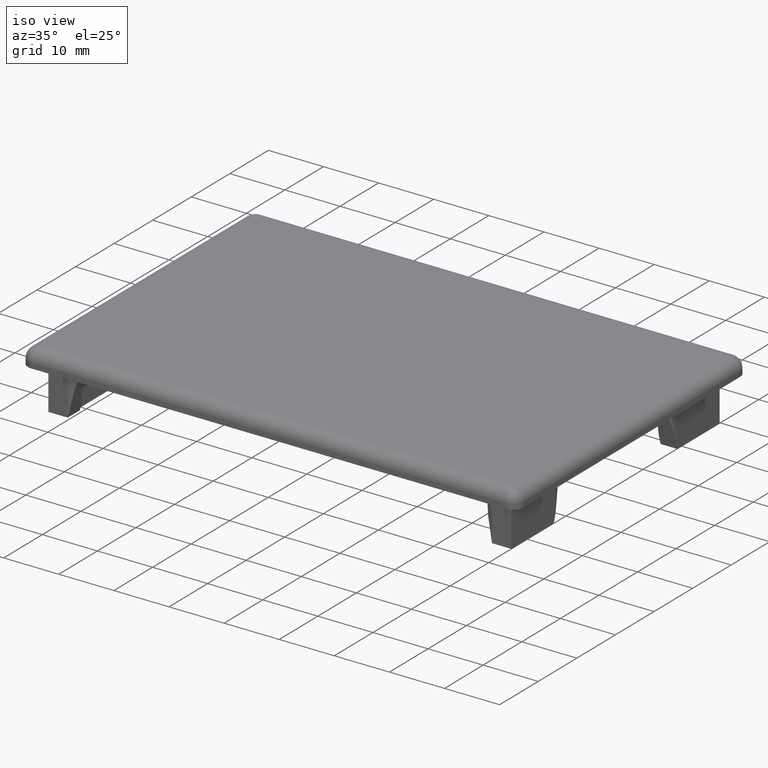
[diagram: clean part render]
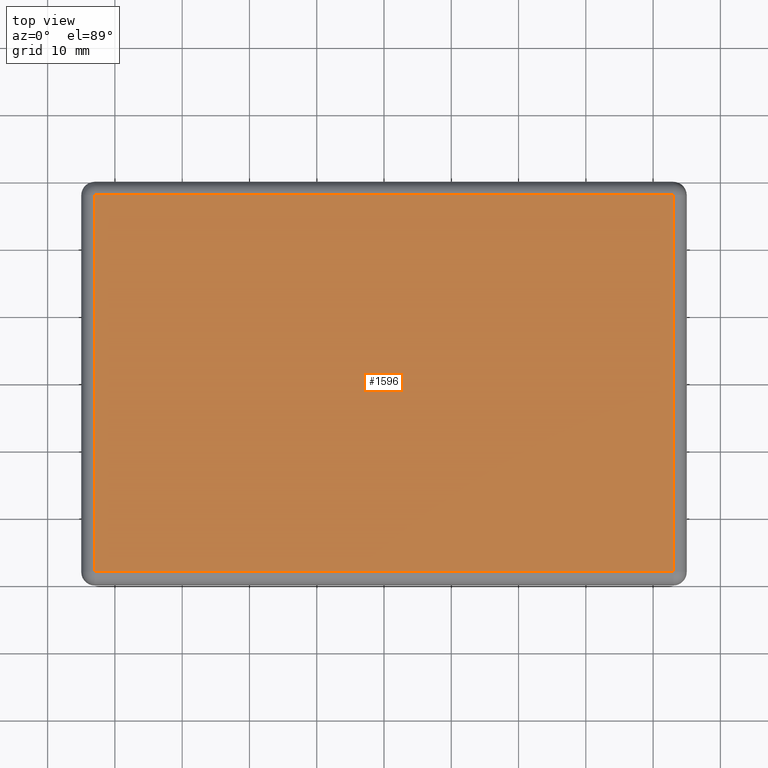
[diagram: tour spotlight — one face highlighted and labeled with its STEP entity id]
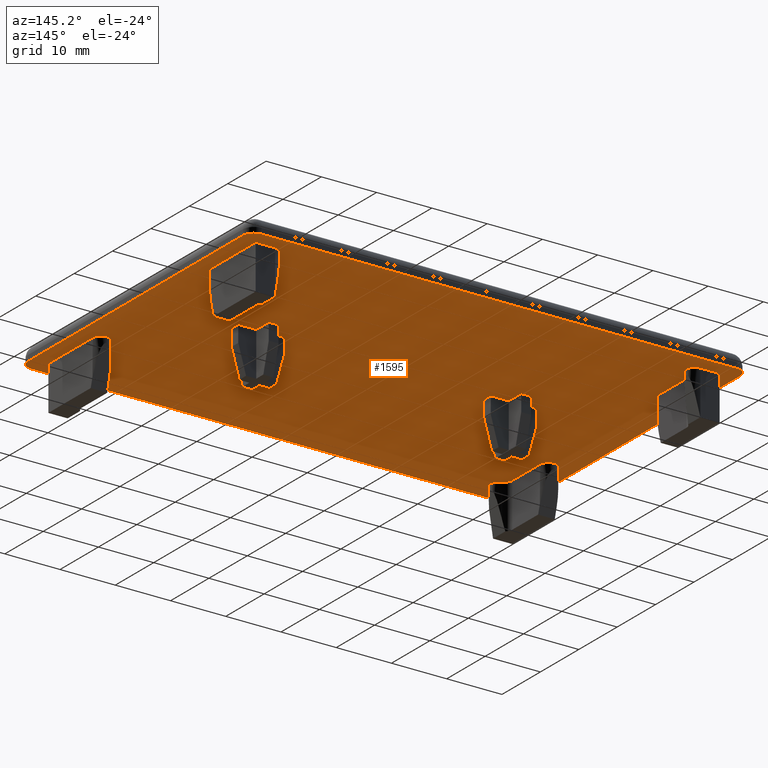
[diagram: tour spotlight — one face highlighted and labeled with its STEP entity id]
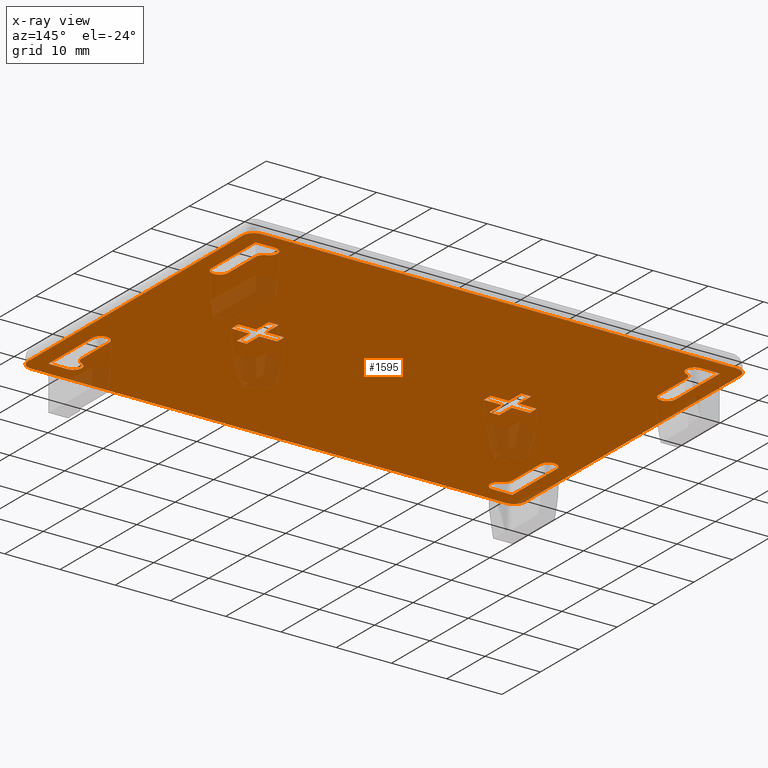
[diagram: x-ray of the same camera — body ghosted, this tour face saturated]
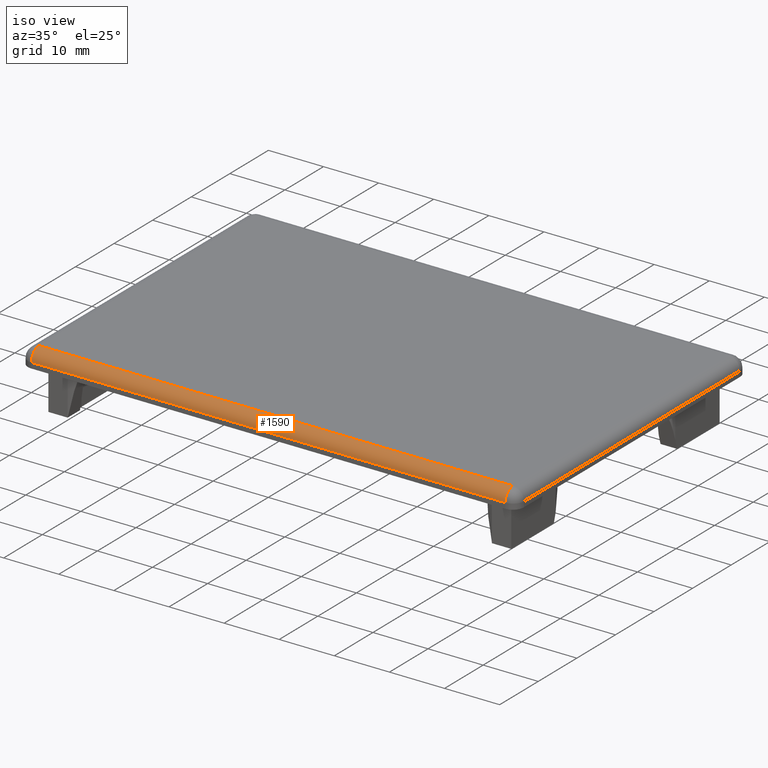
[diagram: tour spotlight — one face highlighted and labeled with its STEP entity id]
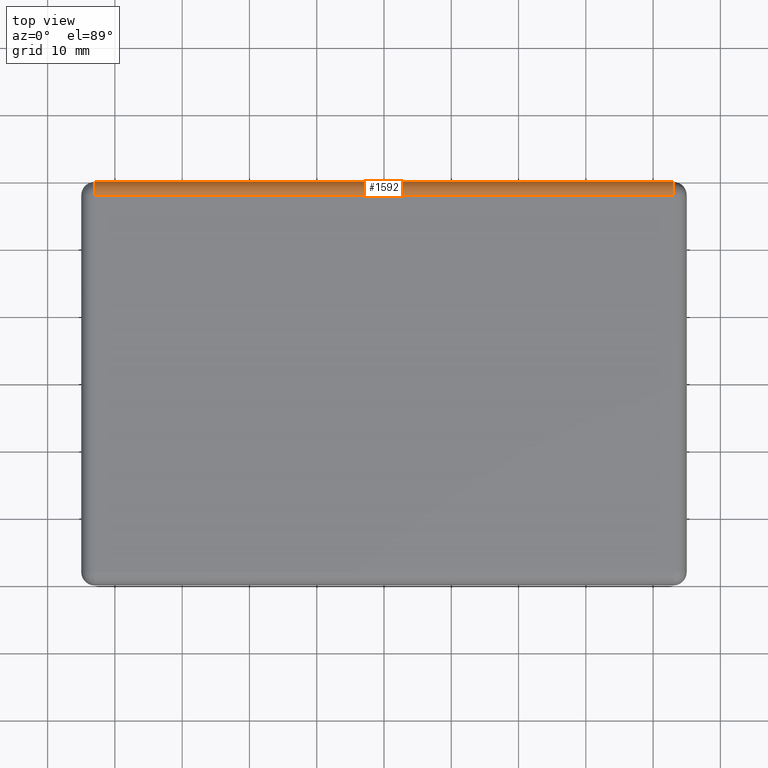
[diagram: tour spotlight — one face highlighted and labeled with its STEP entity id]
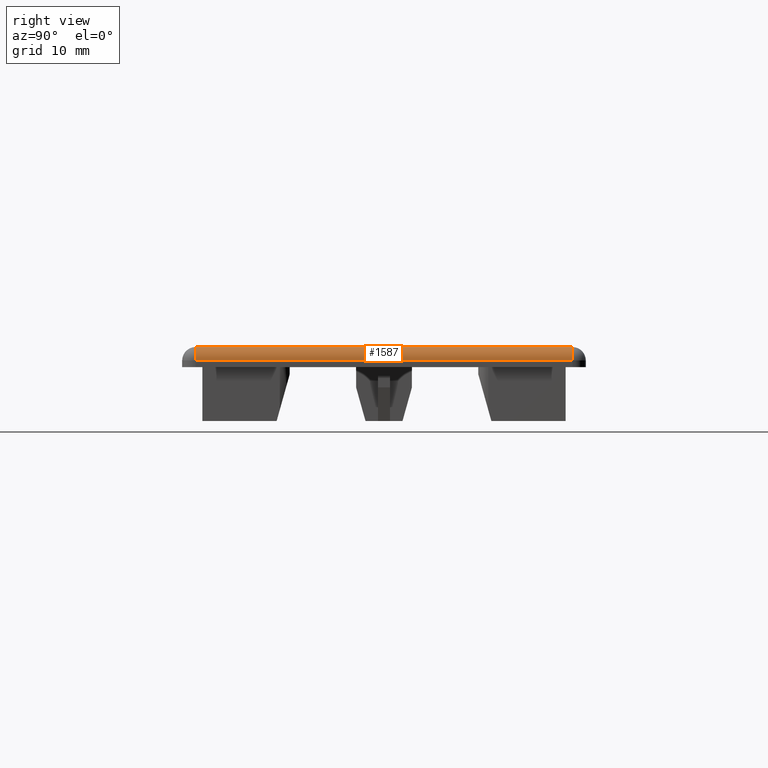
[diagram: tour spotlight — one face highlighted and labeled with its STEP entity id]
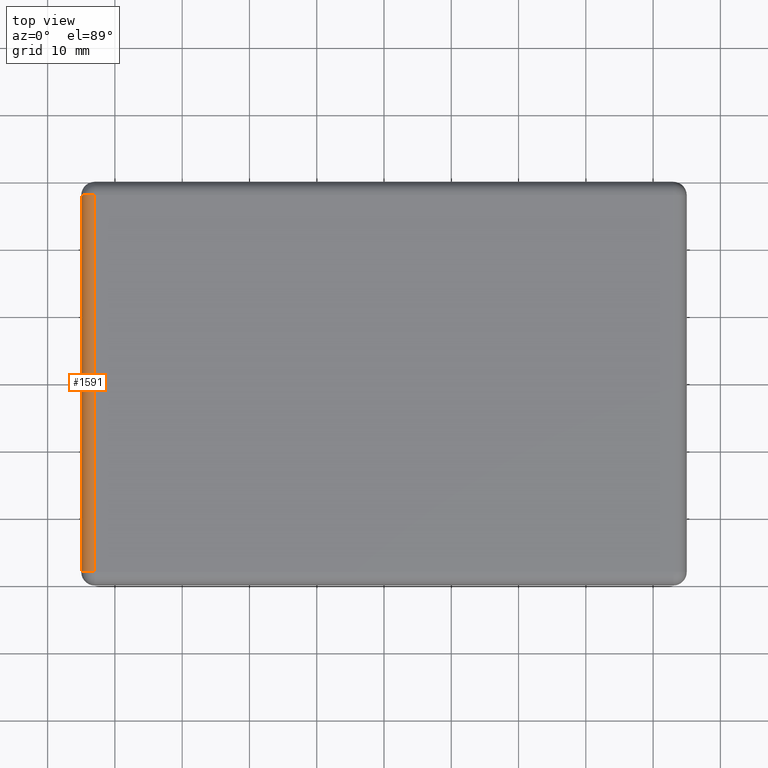
[diagram: tour spotlight — one face highlighted and labeled with its STEP entity id]
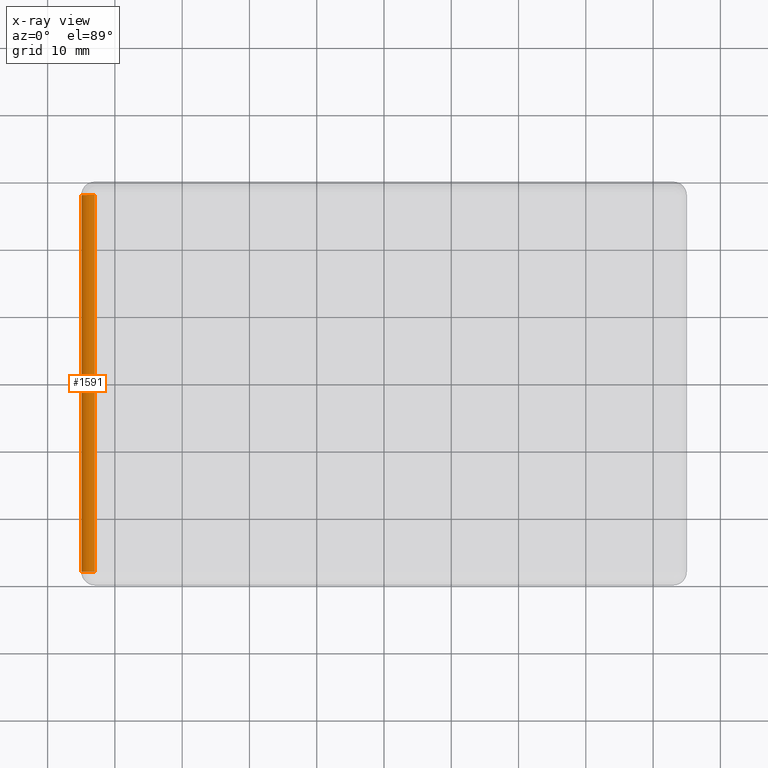
[diagram: x-ray of the same camera — body ghosted, this tour face saturated]
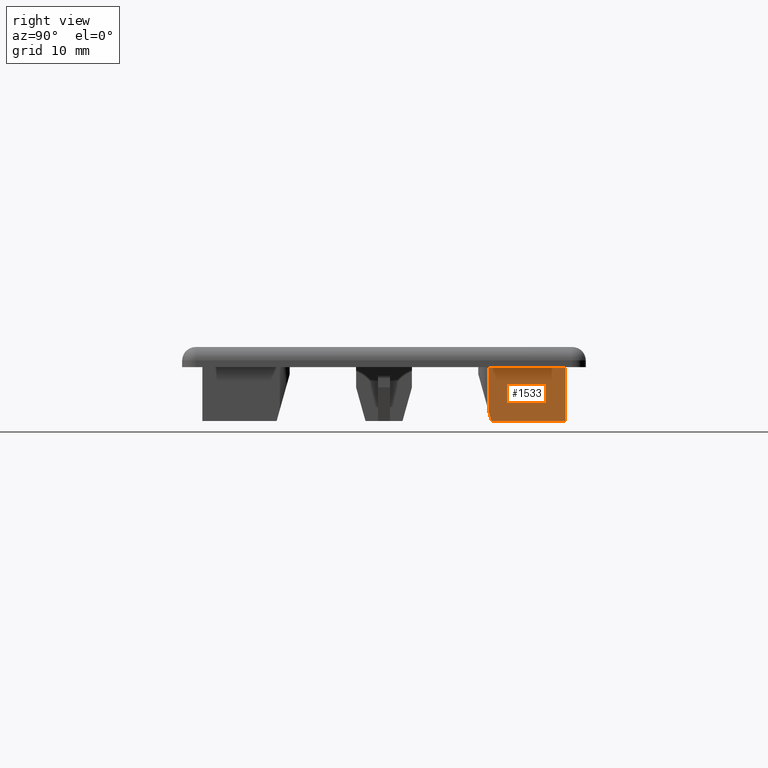
[diagram: tour spotlight — one face highlighted and labeled with its STEP entity id]
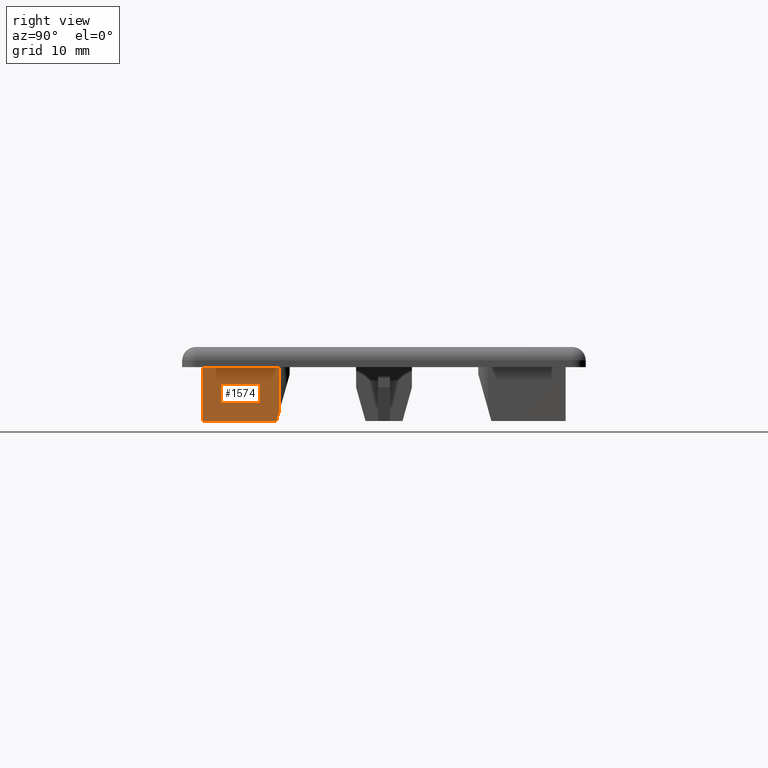
[diagram: tour spotlight — one face highlighted and labeled with its STEP entity id]
A machine part: a face-by-face anatomy tour. The part has 88 B-rep faces; the first image is the clean iso view, then the 8 largest visible faces are spotlighted one at a time (largest first), each with its STEP entity span.

Face 1 — top view, entity #1596. In plain terms, the highlighted planar face has unit normal (0, 0, 1).
Definition (entity closure, byte-faithful):
#162=FACE_OUTER_BOUND('',#256,.T.);
#256=EDGE_LOOP('',(#1435,#1436,#1437,#1438));
#437=LINE('',#2602,#617);
#441=LINE('',#2618,#621);
#443=LINE('',#2621,#623);
#445=LINE('',#2624,#625);
#617=VECTOR('',#2135,56.);
#621=VECTOR('',#2153,86.);
#623=VECTOR('',#2157,56.);
#625=VECTOR('',#2161,86.);
#756=VERTEX_POINT('',#2564);
#761=VERTEX_POINT('',#2577);
#766=VERTEX_POINT('',#2590);
#771=VERTEX_POINT('',#2606);
#981=EDGE_CURVE('',#756,#766,#437,.T.);
#989=EDGE_CURVE('',#766,#771,#441,.T.);
#991=EDGE_CURVE('',#771,#761,#443,.T.);
#993=EDGE_CURVE('',#761,#756,#445,.T.);
#1435=ORIENTED_EDGE('',*,*,#981,.F.);
#1436=ORIENTED_EDGE('',*,*,#993,.F.);
#1437=ORIENTED_EDGE('',*,*,#991,.F.);
#1438=ORIENTED_EDGE('',*,*,#989,.F.);
#1508=PLANE('',#1730);
#1596=ADVANCED_FACE('',(#162),#1508,.T.);
#1730=AXIS2_PLACEMENT_3D('',#2633,#2173,#2174);
#2135=DIRECTION('',(-1.48029736616688E-16,-1.,0.));
#2153=DIRECTION('',(-1.,-1.48029736616688E-16,0.));
#2157=DIRECTION('',(0.,1.,0.));
#2161=DIRECTION('',(1.,1.97372982155583E-16,0.));
#2173=DIRECTION('center_axis',(0.,0.,1.));
#2174=DIRECTION('ref_axis',(1.,0.,0.));
#2564=CARTESIAN_POINT('',(43.,28.,3.));
#2577=CARTESIAN_POINT('',(-43.,28.,3.));
#2590=CARTESIAN_POINT('',(43.,-28.,3.));
#2602=CARTESIAN_POINT('',(43.,-15.,3.));
#2606=CARTESIAN_POINT('',(-43.,-28.,3.));
#2618=CARTESIAN_POINT('',(-22.5,-28.,3.));
#2621=CARTESIAN_POINT('',(-43.,15.,3.));
#2624=CARTESIAN_POINT('',(22.5,28.,3.));
#2633=CARTESIAN_POINT('Origin',(8.88178419700125E-15,0.,3.));

Face 2 — auxiliary view, entity #1595. An x-ray twin of the same camera follows (body ghosted, this face saturated) — the face is partly hidden behind the body. In plain terms, the highlighted planar face has unit normal (0, 0, 1).
Definition (entity closure, byte-faithful):
#15=FACE_BOUND('',#250,.T.);
#16=FACE_BOUND('',#251,.T.);
#17=FACE_BOUND('',#252,.T.);
#18=FACE_BOUND('',#253,.T.);
#19=FACE_BOUND('',#254,.T.);
#20=FACE_BOUND('',#255,.T.);
#25=CIRCLE('',#1614,1.49999999999999);
#27=CIRCLE('',#1629,1.49999999999999);
#28=CIRCLE('',#1632,1.49999999999999);
#30=CIRCLE('',#1651,1.5);
#32=CIRCLE('',#1656,1.5);
#33=CIRCLE('',#1666,1.5);
#34=CIRCLE('',#1668,1.5);
#35=CIRCLE('',#1670,1.5);
#37=CIRCLE('',#1676,1.5);
#38=CIRCLE('',#1691,1.5);
#39=CIRCLE('',#1694,1.49999999999999);
#40=CIRCLE('',#1698,1.5);
#44=CIRCLE('',#1704,2.);
#48=CIRCLE('',#1710,2.);
#52=CIRCLE('',#1716,2.);
#56=CIRCLE('',#1723,2.);
#161=FACE_OUTER_BOUND('',#249,.T.);
#249=EDGE_LOOP('',(#1379,#1380,#1381,#1382,#1383,#1384,#1385,#1386));
#250=EDGE_LOOP('',(#1387,#1388,#1389,#1390,#1391,#1392));
#251=EDGE_LOOP('',(#1393,#1394,#1395,#1396,#1397,#1398));
#252=EDGE_LOOP('',(#1399,#1400,#1401,#1402,#1403,#1404,#1405,#1406,#1407,
#1408,#1409,#1410));
#253=EDGE_LOOP('',(#1411,#1412,#1413,#1414,#1415,#1416,#1417,#1418,#1419,
#1420,#1421,#1422));
#254=EDGE_LOOP('',(#1423,#1424,#1425,#1426,#1427,#1428));
#255=EDGE_LOOP('',(#1429,#1430,#1431,#1432,#1433,#1434));
#303=LINE('',#2263,#483);
#309=LINE('',#2278,#489);
#312=LINE('',#2284,#492);
#316=LINE('',#2291,#496);
#318=LINE('',#2296,#498);
#322=LINE('',#2303,#502);
#324=LINE('',#2308,#504);
#329=LINE('',#2318,#509);
#332=LINE('',#2324,#512);
#337=LINE('',#2334,#517);
#341=LINE('',#2342,#521);
#346=LINE('',#2354,#526);
#378=LINE('',#2449,#558);
#381=LINE('',#2454,#561);
#388=LINE('',#2465,#568);
#390=LINE('',#2469,#570);
#396=LINE('',#2478,#576);
#398=LINE('',#2482,#578);
#402=LINE('',#2498,#582);
#405=LINE('',#2503,#585);
#408=LINE('',#2511,#588);
#409=LINE('',#2513,#589);
#410=LINE('',#2515,#590);
#412=LINE('',#2519,#592);
#413=LINE('',#2521,#593);
#414=LINE('',#2523,#594);
#415=LINE('',#2525,#595);
#417=LINE('',#2529,#597);
#419=LINE('',#2533,#599);
#420=LINE('',#2535,#600);
#421=LINE('',#2537,#601);
#422=LINE('',#2539,#602);
#423=LINE('',#2542,#603);
#425=LINE('',#2547,#605);
#428=LINE('',#2555,#608);
#429=LINE('',#2558,#609);
#447=LINE('',#2627,#627);
#448=LINE('',#2629,#628);
#449=LINE('',#2631,#629);
#450=LINE('',#2632,#630);
#483=VECTOR('',#1797,7.17157287525382);
#489=VECTOR('',#1809,7.17157287525382);
#492=VECTOR('',#1814,1.8);
#496=VECTOR('',#1820,3.25);
#498=VECTOR('',#1824,1.8);
#502=VECTOR('',#1830,3.25);
#504=VECTOR('',#1834,3.25);
#509=VECTOR('',#1841,3.25);
#512=VECTOR('',#1846,3.25);
#517=VECTOR('',#1853,3.25);
#521=VECTOR('',#1859,7.17157287525382);
#526=VECTOR('',#1870,11.5);
#558=VECTOR('',#1956,3.25);
#561=VECTOR('',#1961,3.25);
#568=VECTOR('',#1972,3.25);
#570=VECTOR('',#1976,1.8);
#576=VECTOR('',#1986,3.25);
#578=VECTOR('',#1990,1.8);
#582=VECTOR('',#2010,3.50000000000001);
#585=VECTOR('',#2015,11.5);
#588=VECTOR('',#2026,7.17157287525381);
#589=VECTOR('',#2029,3.50000000000001);
#590=VECTOR('',#2032,1.8);
#592=VECTOR('',#2036,3.25);
#593=VECTOR('',#2039,1.8);
#594=VECTOR('',#2042,3.25);
#595=VECTOR('',#2045,3.25);
#597=VECTOR('',#2049,1.8);
#599=VECTOR('',#2053,3.25);
#600=VECTOR('',#2056,3.25);
#601=VECTOR('',#2059,3.25);
#602=VECTOR('',#2062,1.8);
#603=VECTOR('',#2065,11.5);
#605=VECTOR('',#2073,3.50000000000001);
#608=VECTOR('',#2082,11.5);
#609=VECTOR('',#2085,3.50000000000001);
#627=VECTOR('',#2165,56.);
#628=VECTOR('',#2168,86.);
#629=VECTOR('',#2171,56.);
#630=VECTOR('',#2172,86.);
#663=VERTEX_POINT('',#2253);
#664=VERTEX_POINT('',#2255);
#666=VERTEX_POINT('',#2261);
#671=VERTEX_POINT('',#2275);
#672=VERTEX_POINT('',#2277);
#673=VERTEX_POINT('',#2281);
#674=VERTEX_POINT('',#2283);
#676=VERTEX_POINT('',#2289);
#677=VERTEX_POINT('',#2293);
#678=VERTEX_POINT('',#2295);
#680=VERTEX_POINT('',#2301);
#681=VERTEX_POINT('',#2305);
#682=VERTEX_POINT('',#2307);
#685=VERTEX_POINT('',#2315);
#686=VERTEX_POINT('',#2317);
#687=VERTEX_POINT('',#2321);
#688=VERTEX_POINT('',#2323);
#691=VERTEX_POINT('',#2331);
#692=VERTEX_POINT('',#2333);
#694=VERTEX_POINT('',#2339);
#695=VERTEX_POINT('',#2341);
#696=VERTEX_POINT('',#2345);
#698=VERTEX_POINT('',#2351);
#699=VERTEX_POINT('',#2353);
#700=VERTEX_POINT('',#2357);
#728=VERTEX_POINT('',#2424);
#729=VERTEX_POINT('',#2426);
#731=VERTEX_POINT('',#2438);
#732=VERTEX_POINT('',#2440);
#734=VERTEX_POINT('',#2446);
#735=VERTEX_POINT('',#2448);
#736=VERTEX_POINT('',#2452);
#738=VERTEX_POINT('',#2463);
#739=VERTEX_POINT('',#2467);
#740=VERTEX_POINT('',#2476);
#741=VERTEX_POINT('',#2480);
#742=VERTEX_POINT('',#2484);
#743=VERTEX_POINT('',#2486);
#744=VERTEX_POINT('',#2490);
#745=VERTEX_POINT('',#2497);
#747=VERTEX_POINT('',#2507);
#748=VERTEX_POINT('',#2517);
#749=VERTEX_POINT('',#2527);
#750=VERTEX_POINT('',#2531);
#751=VERTEX_POINT('',#2541);
#752=VERTEX_POINT('',#2549);
#753=VERTEX_POINT('',#2553);
#754=VERTEX_POINT('',#2557);
#758=VERTEX_POINT('',#2570);
#759=VERTEX_POINT('',#2571);
#763=VERTEX_POINT('',#2583);
#764=VERTEX_POINT('',#2584);
#768=VERTEX_POINT('',#2596);
#769=VERTEX_POINT('',#2597);
#773=VERTEX_POINT('',#2612);
#774=VERTEX_POINT('',#2613);
#808=EDGE_CURVE('',#664,#663,#25,.T.);
#812=EDGE_CURVE('',#663,#666,#303,.T.);
#819=EDGE_CURVE('',#672,#671,#309,.T.);
#822=EDGE_CURVE('',#674,#673,#312,.T.);
#826=EDGE_CURVE('',#673,#676,#316,.T.);
#828=EDGE_CURVE('',#678,#677,#318,.T.);
#832=EDGE_CURVE('',#677,#680,#322,.T.);
#834=EDGE_CURVE('',#682,#681,#324,.T.);
#839=EDGE_CURVE('',#686,#685,#329,.T.);
#842=EDGE_CURVE('',#688,#687,#332,.T.);
#847=EDGE_CURVE('',#692,#691,#337,.T.);
#851=EDGE_CURVE('',#695,#694,#341,.T.);
#853=EDGE_CURVE('',#696,#695,#27,.T.);
#857=EDGE_CURVE('',#699,#698,#346,.T.);
#859=EDGE_CURVE('',#700,#699,#28,.T.);
#890=EDGE_CURVE('',#729,#728,#30,.T.);
#898=EDGE_CURVE('',#732,#731,#32,.T.);
#902=EDGE_CURVE('',#735,#734,#378,.T.);
#905=EDGE_CURVE('',#685,#736,#381,.T.);
#912=EDGE_CURVE('',#676,#738,#388,.T.);
#914=EDGE_CURVE('',#738,#739,#390,.T.);
#920=EDGE_CURVE('',#680,#740,#396,.T.);
#922=EDGE_CURVE('',#740,#741,#398,.T.);
#924=EDGE_CURVE('',#743,#742,#33,.T.);
#926=EDGE_CURVE('',#744,#672,#34,.T.);
#928=EDGE_CURVE('',#694,#743,#35,.T.);
#930=EDGE_CURVE('',#742,#745,#402,.T.);
#933=EDGE_CURVE('',#745,#696,#405,.T.);
#935=EDGE_CURVE('',#747,#729,#37,.T.);
#937=EDGE_CURVE('',#728,#700,#408,.T.);
#938=EDGE_CURVE('',#698,#747,#409,.T.);
#939=EDGE_CURVE('',#687,#692,#410,.T.);
#941=EDGE_CURVE('',#691,#748,#412,.T.);
#942=EDGE_CURVE('',#748,#735,#413,.T.);
#943=EDGE_CURVE('',#734,#678,#414,.T.);
#944=EDGE_CURVE('',#741,#688,#415,.T.);
#946=EDGE_CURVE('',#736,#749,#417,.T.);
#948=EDGE_CURVE('',#749,#750,#419,.T.);
#949=EDGE_CURVE('',#750,#674,#420,.T.);
#950=EDGE_CURVE('',#739,#682,#421,.T.);
#951=EDGE_CURVE('',#681,#686,#422,.T.);
#952=EDGE_CURVE('',#751,#664,#423,.T.);
#954=EDGE_CURVE('',#666,#732,#38,.T.);
#955=EDGE_CURVE('',#731,#751,#425,.T.);
#957=EDGE_CURVE('',#671,#752,#39,.T.);
#959=EDGE_CURVE('',#752,#753,#428,.T.);
#960=EDGE_CURVE('',#753,#754,#429,.T.);
#962=EDGE_CURVE('',#754,#744,#40,.T.);
#966=EDGE_CURVE('',#758,#759,#44,.T.);
#972=EDGE_CURVE('',#763,#764,#48,.T.);
#978=EDGE_CURVE('',#768,#769,#52,.T.);
#986=EDGE_CURVE('',#773,#774,#56,.T.);
#995=EDGE_CURVE('',#758,#769,#447,.T.);
#996=EDGE_CURVE('',#768,#774,#448,.T.);
#997=EDGE_CURVE('',#773,#764,#449,.T.);
#998=EDGE_CURVE('',#763,#759,#450,.T.);
#1379=ORIENTED_EDGE('',*,*,#966,.F.);
#1380=ORIENTED_EDGE('',*,*,#995,.T.);
#1381=ORIENTED_EDGE('',*,*,#978,.F.);
#1382=ORIENTED_EDGE('',*,*,#996,.T.);
#1383=ORIENTED_EDGE('',*,*,#986,.F.);
#1384=ORIENTED_EDGE('',*,*,#997,.T.);
#1385=ORIENTED_EDGE('',*,*,#972,.F.);
#1386=ORIENTED_EDGE('',*,*,#998,.T.);
#1387=ORIENTED_EDGE('',*,*,#853,.T.);
#1388=ORIENTED_EDGE('',*,*,#851,.T.);
#1389=ORIENTED_EDGE('',*,*,#928,.T.);
#1390=ORIENTED_EDGE('',*,*,#924,.T.);
#1391=ORIENTED_EDGE('',*,*,#930,.T.);
#1392=ORIENTED_EDGE('',*,*,#933,.T.);
#1393=ORIENTED_EDGE('',*,*,#935,.T.);
#1394=ORIENTED_EDGE('',*,*,#890,.T.);
#1395=ORIENTED_EDGE('',*,*,#937,.T.);
#1396=ORIENTED_EDGE('',*,*,#859,.T.);
#1397=ORIENTED_EDGE('',*,*,#857,.T.);
#1398=ORIENTED_EDGE('',*,*,#938,.T.);
#1399=ORIENTED_EDGE('',*,*,#939,.T.);
#1400=ORIENTED_EDGE('',*,*,#847,.T.);
#1401=ORIENTED_EDGE('',*,*,#941,.T.);
#1402=ORIENTED_EDGE('',*,*,#942,.T.);
#1403=ORIENTED_EDGE('',*,*,#902,.T.);
#1404=ORIENTED_EDGE('',*,*,#943,.T.);
#1405=ORIENTED_EDGE('',*,*,#828,.T.);
#1406=ORIENTED_EDGE('',*,*,#832,.T.);
#1407=ORIENTED_EDGE('',*,*,#920,.T.);
#1408=ORIENTED_EDGE('',*,*,#922,.T.);
#1409=ORIENTED_EDGE('',*,*,#944,.T.);
#1410=ORIENTED_EDGE('',*,*,#842,.T.);
#1411=ORIENTED_EDGE('',*,*,#946,.T.);
#1412=ORIENTED_EDGE('',*,*,#948,.T.);
#1413=ORIENTED_EDGE('',*,*,#949,.T.);
#1414=ORIENTED_EDGE('',*,*,#822,.T.);
#1415=ORIENTED_EDGE('',*,*,#826,.T.);
#1416=ORIENTED_EDGE('',*,*,#912,.T.);
#1417=ORIENTED_EDGE('',*,*,#914,.T.);
#1418=ORIENTED_EDGE('',*,*,#950,.T.);
#1419=ORIENTED_EDGE('',*,*,#834,.T.);
#1420=ORIENTED_EDGE('',*,*,#951,.T.);
#1421=ORIENTED_EDGE('',*,*,#839,.T.);
#1422=ORIENTED_EDGE('',*,*,#905,.T.);
#1423=ORIENTED_EDGE('',*,*,#952,.T.);
#1424=ORIENTED_EDGE('',*,*,#808,.T.);
#1425=ORIENTED_EDGE('',*,*,#812,.T.);
#1426=ORIENTED_EDGE('',*,*,#954,.T.);
#1427=ORIENTED_EDGE('',*,*,#898,.T.);
#1428=ORIENTED_EDGE('',*,*,#955,.T.);
#1429=ORIENTED_EDGE('',*,*,#957,.T.);
#1430=ORIENTED_EDGE('',*,*,#959,.T.);
#1431=ORIENTED_EDGE('',*,*,#960,.T.);
#1432=ORIENTED_EDGE('',*,*,#962,.T.);
#1433=ORIENTED_EDGE('',*,*,#926,.T.);
#1434=ORIENTED_EDGE('',*,*,#819,.T.);
#1507=PLANE('',#1729);
#1595=ADVANCED_FACE('',(#161,#15,#16,#17,#18,#19,#20),#1507,.F.);
#1614=AXIS2_PLACEMENT_3D('',#2256,#1790,#1791);
#1629=AXIS2_PLACEMENT_3D('',#2346,#1863,#1864);
#1632=AXIS2_PLACEMENT_3D('',#2358,#1874,#1875);
#1651=AXIS2_PLACEMENT_3D('',#2427,#1933,#1934);
#1656=AXIS2_PLACEMENT_3D('',#2441,#1949,#1950);
#1666=AXIS2_PLACEMENT_3D('',#2487,#1994,#1995);
#1668=AXIS2_PLACEMENT_3D('',#2491,#1999,#2000);
#1670=AXIS2_PLACEMENT_3D('',#2494,#2004,#2005);
#1676=AXIS2_PLACEMENT_3D('',#2508,#2021,#2022);
#1691=AXIS2_PLACEMENT_3D('',#2545,#2069,#2070);
#1694=AXIS2_PLACEMENT_3D('',#2551,#2077,#2078);
#1698=AXIS2_PLACEMENT_3D('',#2561,#2089,#2090);
#1704=AXIS2_PLACEMENT_3D('',#2572,#2101,#2102);
#1710=AXIS2_PLACEMENT_3D('',#2585,#2115,#2116);
#1716=AXIS2_PLACEMENT_3D('',#2598,#2129,#2130);
#1723=AXIS2_PLACEMENT_3D('',#2614,#2147,#2148);
#1729=AXIS2_PLACEMENT_3D('',#2630,#2169,#2170);
#1790=DIRECTION('center_axis',(0.,0.,1.));
#1791=DIRECTION('ref_axis',(1.,0.,0.));
#1797=DIRECTION('',(0.,-1.,0.));
#1809=DIRECTION('',(0.,1.,0.));
#1814=DIRECTION('',(1.,0.,0.));
#1820=DIRECTION('',(0.,1.,0.));
#1824=DIRECTION('',(1.,0.,0.));
#1830=DIRECTION('',(0.,1.,0.));
#1834=DIRECTION('',(0.,1.,0.));
#1841=DIRECTION('',(0.,-1.,0.));
#1846=DIRECTION('',(0.,1.,0.));
#1853=DIRECTION('',(0.,-1.,0.));
#1859=DIRECTION('',(0.,1.,0.));
#1863=DIRECTION('center_axis',(0.,0.,1.));
#1864=DIRECTION('ref_axis',(1.,0.,0.));
#1870=DIRECTION('',(0.,1.,0.));
#1874=DIRECTION('center_axis',(0.,0.,1.));
#1875=DIRECTION('ref_axis',(1.,0.,0.));
#1933=DIRECTION('center_axis',(0.,0.,-1.));
#1934=DIRECTION('ref_axis',(-0.333333333333332,-0.942809041582064,0.));
#1949=DIRECTION('center_axis',(0.,0.,1.));
#1950=DIRECTION('ref_axis',(0.,1.,0.));
#1956=DIRECTION('',(1.,0.,0.));
#1961=DIRECTION('',(-1.,0.,0.));
#1972=DIRECTION('',(1.,0.,0.));
#1976=DIRECTION('',(0.,1.,0.));
#1986=DIRECTION('',(1.,0.,0.));
#1990=DIRECTION('',(0.,1.,0.));
#1994=DIRECTION('center_axis',(0.,0.,1.));
#1995=DIRECTION('ref_axis',(0.,1.,0.));
#1999=DIRECTION('center_axis',(0.,0.,-1.));
#2000=DIRECTION('ref_axis',(0.333333333333332,0.942809041582064,0.));
#2004=DIRECTION('center_axis',(0.,0.,-1.));
#2005=DIRECTION('ref_axis',(1.,0.,0.));
#2010=DIRECTION('',(-1.,0.,0.));
#2015=DIRECTION('',(0.,-1.,0.));
#2021=DIRECTION('center_axis',(0.,0.,1.));
#2022=DIRECTION('ref_axis',(-0.333333333333333,-0.942809041582064,0.));
#2026=DIRECTION('',(0.,-1.,0.));
#2029=DIRECTION('',(-1.,0.,0.));
#2032=DIRECTION('',(-1.,0.,0.));
#2036=DIRECTION('',(-1.,0.,0.));
#2039=DIRECTION('',(0.,-1.,0.));
#2042=DIRECTION('',(0.,-1.,0.));
#2045=DIRECTION('',(-1.,0.,0.));
#2049=DIRECTION('',(0.,-1.,0.));
#2053=DIRECTION('',(1.,0.,0.));
#2056=DIRECTION('',(0.,-1.,0.));
#2059=DIRECTION('',(-1.,0.,0.));
#2062=DIRECTION('',(-1.,0.,0.));
#2065=DIRECTION('',(0.,1.,0.));
#2069=DIRECTION('center_axis',(0.,0.,-1.));
#2070=DIRECTION('ref_axis',(1.,0.,0.));
#2073=DIRECTION('',(1.,0.,0.));
#2077=DIRECTION('center_axis',(0.,0.,1.));
#2078=DIRECTION('ref_axis',(-1.,0.,0.));
#2082=DIRECTION('',(0.,-1.,0.));
#2085=DIRECTION('',(1.,0.,0.));
#2089=DIRECTION('center_axis',(0.,0.,1.));
#2090=DIRECTION('ref_axis',(0.333333333333333,0.942809041582064,0.));
#2101=DIRECTION('center_axis',(0.,0.,1.));
#2102=DIRECTION('ref_axis',(0.707106781186549,0.707106781186546,0.));
#2115=DIRECTION('center_axis',(0.,0.,1.));
#2116=DIRECTION('ref_axis',(-0.707106781186546,0.707106781186549,0.));
#2129=DIRECTION('center_axis',(0.,0.,1.));
#2130=DIRECTION('ref_axis',(0.707106781186546,-0.707106781186549,0.));
#2147=DIRECTION('center_axis',(0.,0.,1.));
#2148=DIRECTION('ref_axis',(-0.707106781186546,-0.707106781186549,0.));
#2165=DIRECTION('',(-1.48029736616688E-16,-1.,0.));
#2168=DIRECTION('',(-1.,-1.48029736616688E-16,0.));
#2169=DIRECTION('center_axis',(0.,0.,1.));
#2170=DIRECTION('ref_axis',(1.,0.,0.));
#2171=DIRECTION('',(0.,1.,0.));
#2172=DIRECTION('',(1.,1.97372982155583E-16,0.));
#2253=CARTESIAN_POINT('',(39.,-15.5,0.));
#2255=CARTESIAN_POINT('',(42.,-15.5,0.));
#2256=CARTESIAN_POINT('Origin',(40.5,-15.5,0.));
#2261=CARTESIAN_POINT('',(39.,-22.6715728752538,0.));
#2263=CARTESIAN_POINT('',(39.,-11.3357864376269,0.));
#2275=CARTESIAN_POINT('',(-39.,-15.5,0.));
#2277=CARTESIAN_POINT('',(-39.,-22.6715728752538,0.));
#2278=CARTESIAN_POINT('',(-39.,-7.75,0.));
#2281=CARTESIAN_POINT('',(-21.95,-4.15,0.));
#2283=CARTESIAN_POINT('',(-23.75,-4.15,0.));
#2284=CARTESIAN_POINT('',(-10.975,-4.15,0.));
#2289=CARTESIAN_POINT('',(-21.95,-0.9,0.));
#2291=CARTESIAN_POINT('',(-21.95,-0.449999999999999,0.));
#2293=CARTESIAN_POINT('',(23.75,-4.15,0.));
#2295=CARTESIAN_POINT('',(21.95,-4.15,0.));
#2296=CARTESIAN_POINT('',(11.875,-4.15,0.));
#2301=CARTESIAN_POINT('',(23.75,-0.9,0.));
#2303=CARTESIAN_POINT('',(23.75,-0.449999999999999,0.));
#2305=CARTESIAN_POINT('',(-21.95,4.15,0.));
#2307=CARTESIAN_POINT('',(-21.95,0.9,0.));
#2308=CARTESIAN_POINT('',(-21.95,2.075,0.));
#2315=CARTESIAN_POINT('',(-23.75,0.9,0.));
#2317=CARTESIAN_POINT('',(-23.75,4.15,0.));
#2318=CARTESIAN_POINT('',(-23.75,0.450000000000001,0.));
#2321=CARTESIAN_POINT('',(23.75,4.15,0.));
#2323=CARTESIAN_POINT('',(23.75,0.9,0.));
#2324=CARTESIAN_POINT('',(23.75,2.075,0.));
#2331=CARTESIAN_POINT('',(21.95,0.9,0.));
#2333=CARTESIAN_POINT('',(21.95,4.15,0.));
#2334=CARTESIAN_POINT('',(21.95,0.450000000000001,0.));
#2339=CARTESIAN_POINT('',(-39.,22.6715728752538,0.));
#2341=CARTESIAN_POINT('',(-39.,15.5,0.));
#2342=CARTESIAN_POINT('',(-39.,11.3357864376269,0.));
#2345=CARTESIAN_POINT('',(-42.,15.5,0.));
#2346=CARTESIAN_POINT('Origin',(-40.5,15.5,0.));
#2351=CARTESIAN_POINT('',(42.,27.,0.));
#2353=CARTESIAN_POINT('',(42.,15.5,0.));
#2354=CARTESIAN_POINT('',(42.,13.5,0.));
#2357=CARTESIAN_POINT('',(39.,15.5,0.));
#2358=CARTESIAN_POINT('Origin',(40.5,15.5,0.));
#2424=CARTESIAN_POINT('',(39.,22.6715728752538,0.));
#2426=CARTESIAN_POINT('',(38.,24.0857864376269,0.));
#2427=CARTESIAN_POINT('Origin',(37.5,22.6715728752538,0.));
#2438=CARTESIAN_POINT('',(38.5,-27.,0.));
#2440=CARTESIAN_POINT('',(38.,-24.0857864376269,0.));
#2441=CARTESIAN_POINT('Origin',(38.5,-25.5,0.));
#2446=CARTESIAN_POINT('',(21.95,-0.9,0.));
#2448=CARTESIAN_POINT('',(18.7,-0.9,0.));
#2449=CARTESIAN_POINT('',(10.975,-0.9,0.));
#2452=CARTESIAN_POINT('',(-27.,0.9,0.));
#2454=CARTESIAN_POINT('',(-13.5,0.9,0.));
#2463=CARTESIAN_POINT('',(-18.7,-0.9,0.));
#2465=CARTESIAN_POINT('',(-9.34999999999999,-0.9,0.));
#2467=CARTESIAN_POINT('',(-18.7,0.9,0.));
#2469=CARTESIAN_POINT('',(-18.7,0.450000000000001,0.));
#2476=CARTESIAN_POINT('',(27.,-0.9,0.));
#2478=CARTESIAN_POINT('',(13.5,-0.9,0.));
#2480=CARTESIAN_POINT('',(27.,0.9,0.));
#2482=CARTESIAN_POINT('',(27.,0.450000000000001,0.));
#2484=CARTESIAN_POINT('',(-38.5,27.,0.));
#2486=CARTESIAN_POINT('',(-38.,24.0857864376269,0.));
#2487=CARTESIAN_POINT('Origin',(-38.5,25.5,0.));
#2490=CARTESIAN_POINT('',(-38.,-24.0857864376269,0.));
#2491=CARTESIAN_POINT('Origin',(-37.5,-22.6715728752538,0.));
#2494=CARTESIAN_POINT('Origin',(-37.5,22.6715728752538,0.));
#2497=CARTESIAN_POINT('',(-42.,27.,0.));
#2498=CARTESIAN_POINT('',(-21.,27.,0.));
#2503=CARTESIAN_POINT('',(-42.,7.75,0.));
#2507=CARTESIAN_POINT('',(38.5,27.,0.));
#2508=CARTESIAN_POINT('Origin',(38.5,25.5,0.));
#2511=CARTESIAN_POINT('',(39.,7.75,0.));
#2513=CARTESIAN_POINT('',(19.25,27.,0.));
#2515=CARTESIAN_POINT('',(10.975,4.15,0.));
#2517=CARTESIAN_POINT('',(18.7,0.9,0.));
#2519=CARTESIAN_POINT('',(9.35000000000001,0.9,0.));
#2521=CARTESIAN_POINT('',(18.7,-0.449999999999999,0.));
#2523=CARTESIAN_POINT('',(21.95,-2.075,0.));
#2525=CARTESIAN_POINT('',(11.875,0.9,0.));
#2527=CARTESIAN_POINT('',(-27.,-0.9,0.));
#2529=CARTESIAN_POINT('',(-27.,-0.449999999999999,0.));
#2531=CARTESIAN_POINT('',(-23.75,-0.9,0.));
#2533=CARTESIAN_POINT('',(-11.875,-0.9,0.));
#2535=CARTESIAN_POINT('',(-23.75,-2.075,0.));
#2537=CARTESIAN_POINT('',(-10.975,0.9,0.));
#2539=CARTESIAN_POINT('',(-11.875,4.15,0.));
#2541=CARTESIAN_POINT('',(42.,-27.,0.));
#2542=CARTESIAN_POINT('',(42.,-7.75,0.));
#2545=CARTESIAN_POINT('Origin',(37.5,-22.6715728752538,0.));
#2547=CARTESIAN_POINT('',(21.,-27.,0.));
#2549=CARTESIAN_POINT('',(-42.,-15.5,0.));
#2551=CARTESIAN_POINT('Origin',(-40.5,-15.5,0.));
#2553=CARTESIAN_POINT('',(-42.,-27.,0.));
#2555=CARTESIAN_POINT('',(-42.,-13.5,0.));
#2557=CARTESIAN_POINT('',(-38.5,-27.,0.));
#2558=CARTESIAN_POINT('',(-19.25,-27.,0.));
#2561=CARTESIAN_POINT('Origin',(-38.5,-25.5,0.));
#2570=CARTESIAN_POINT('',(45.,28.,0.));
#2571=CARTESIAN_POINT('',(43.,30.,0.));
#2572=CARTESIAN_POINT('Origin',(43.,28.,0.));
#2583=CARTESIAN_POINT('',(-43.,30.,0.));
#2584=CARTESIAN_POINT('',(-45.,28.,0.));
#2585=CARTESIAN_POINT('Origin',(-43.,28.,0.));
#2596=CARTESIAN_POINT('',(43.,-30.,0.));
#2597=CARTESIAN_POINT('',(45.,-28.,0.));
#2598=CARTESIAN_POINT('Origin',(43.,-28.,0.));
#2612=CARTESIAN_POINT('',(-45.,-28.,0.));
#2613=CARTESIAN_POINT('',(-43.,-30.,0.));
#2614=CARTESIAN_POINT('Origin',(-43.,-28.,0.));
#2627=CARTESIAN_POINT('',(45.,30.,0.));
#2629=CARTESIAN_POINT('',(45.,-30.,0.));
#2630=CARTESIAN_POINT('Origin',(1.06581410364015E-14,1.77635683940025E-15,
0.));
#2631=CARTESIAN_POINT('',(-45.,-30.,0.));
#2632=CARTESIAN_POINT('',(-45.,30.,0.));

Face 3 — iso view, entity #1590. In plain terms, the highlighted cylindrical surface (edge-blend (fillet) strip) has radius 2 mm, axis along (1, 0, 0).
Definition (entity closure, byte-faithful):
#49=CIRCLE('',#1712,2.);
#55=CIRCLE('',#1721,2.);
#74=CYLINDRICAL_SURFACE('',#1724,2.);
#156=FACE_OUTER_BOUND('',#244,.T.);
#244=EDGE_LOOP('',(#1359,#1360,#1361,#1362));
#441=LINE('',#2618,#621);
#442=LINE('',#2619,#622);
#621=VECTOR('',#2153,86.);
#622=VECTOR('',#2154,86.);
#765=VERTEX_POINT('',#2589);
#766=VERTEX_POINT('',#2590);
#771=VERTEX_POINT('',#2606);
#772=VERTEX_POINT('',#2608);
#975=EDGE_CURVE('',#765,#766,#49,.F.);
#985=EDGE_CURVE('',#771,#772,#55,.F.);
#989=EDGE_CURVE('',#766,#771,#441,.T.);
#990=EDGE_CURVE('',#772,#765,#442,.T.);
#1359=ORIENTED_EDGE('',*,*,#975,.T.);
#1360=ORIENTED_EDGE('',*,*,#989,.T.);
#1361=ORIENTED_EDGE('',*,*,#985,.T.);
#1362=ORIENTED_EDGE('',*,*,#990,.T.);
#1590=ADVANCED_FACE('',(#156),#74,.T.);
#1712=AXIS2_PLACEMENT_3D('',#2591,#2121,#2122);
#1721=AXIS2_PLACEMENT_3D('',#2610,#2143,#2144);
#1724=AXIS2_PLACEMENT_3D('',#2617,#2151,#2152);
#2121=DIRECTION('center_axis',(1.,0.,0.));
#2122=DIRECTION('ref_axis',(0.,-1.,0.));
#2143=DIRECTION('center_axis',(-1.,0.,0.));
#2144=DIRECTION('ref_axis',(0.,0.,1.));
#2151=DIRECTION('center_axis',(1.,1.48029736616688E-16,0.));
#2152=DIRECTION('ref_axis',(0.,-0.707106781186548,0.707106781186547));
#2153=DIRECTION('',(-1.,-1.48029736616688E-16,0.));
#2154=DIRECTION('',(1.,1.48029736616688E-16,0.));
#2589=CARTESIAN_POINT('',(43.,-30.,1.));
#2590=CARTESIAN_POINT('',(43.,-28.,3.));
#2591=CARTESIAN_POINT('Origin',(43.,-28.,1.));
#2606=CARTESIAN_POINT('',(-43.,-28.,3.));
#2608=CARTESIAN_POINT('',(-43.,-30.,1.));
#2610=CARTESIAN_POINT('Origin',(-43.,-28.,1.));
#2617=CARTESIAN_POINT('Origin',(-22.5,-28.,1.));
#2618=CARTESIAN_POINT('',(-22.5,-28.,3.));
#2619=CARTESIAN_POINT('',(-22.5,-30.,1.));

Face 4 — top view, entity #1592. In plain terms, the highlighted cylindrical surface (edge-blend (fillet) strip) has radius 2 mm, axis along (-1, -0, 0).
Definition (entity closure, byte-faithful):
#43=CIRCLE('',#1702,2.);
#45=CIRCLE('',#1706,2.);
#76=CYLINDRICAL_SURFACE('',#1726,2.);
#158=FACE_OUTER_BOUND('',#246,.T.);
#246=EDGE_LOOP('',(#1367,#1368,#1369,#1370));
#445=LINE('',#2624,#625);
#446=LINE('',#2625,#626);
#625=VECTOR('',#2161,86.);
#626=VECTOR('',#2162,86.);
#756=VERTEX_POINT('',#2564);
#757=VERTEX_POINT('',#2566);
#760=VERTEX_POINT('',#2576);
#761=VERTEX_POINT('',#2577);
#965=EDGE_CURVE('',#756,#757,#43,.F.);
#969=EDGE_CURVE('',#760,#761,#45,.F.);
#993=EDGE_CURVE('',#761,#756,#445,.T.);
#994=EDGE_CURVE('',#757,#760,#446,.T.);
#1367=ORIENTED_EDGE('',*,*,#969,.T.);
#1368=ORIENTED_EDGE('',*,*,#993,.T.);
#1369=ORIENTED_EDGE('',*,*,#965,.T.);
#1370=ORIENTED_EDGE('',*,*,#994,.T.);
#1592=ADVANCED_FACE('',(#158),#76,.T.);
#1702=AXIS2_PLACEMENT_3D('',#2568,#2097,#2098);
#1706=AXIS2_PLACEMENT_3D('',#2578,#2107,#2108);
#1726=AXIS2_PLACEMENT_3D('',#2623,#2159,#2160);
#2097=DIRECTION('center_axis',(1.,0.,0.));
#2098=DIRECTION('ref_axis',(0.,0.,1.));
#2107=DIRECTION('center_axis',(-1.,0.,0.));
#2108=DIRECTION('ref_axis',(0.,1.,0.));
#2159=DIRECTION('center_axis',(-1.,-1.97372982155583E-16,0.));
#2160=DIRECTION('ref_axis',(0.,0.707106781186548,0.707106781186547));
#2161=DIRECTION('',(1.,1.97372982155583E-16,0.));
#2162=DIRECTION('',(-1.,-1.97372982155583E-16,0.));
#2564=CARTESIAN_POINT('',(43.,28.,3.));
#2566=CARTESIAN_POINT('',(43.,30.,1.));
#2568=CARTESIAN_POINT('Origin',(43.,28.,1.));
#2576=CARTESIAN_POINT('',(-43.,30.,1.));
#2577=CARTESIAN_POINT('',(-43.,28.,3.));
#2578=CARTESIAN_POINT('Origin',(-43.,28.,1.));
#2623=CARTESIAN_POINT('Origin',(22.5,28.,1.));
#2624=CARTESIAN_POINT('',(22.5,28.,3.));
#2625=CARTESIAN_POINT('',(22.5,30.,1.));

Face 5 — right view, entity #1587. In plain terms, the highlighted cylindrical surface (edge-blend (fillet) strip) has radius 2 mm, axis along (0, 1, 0).
Definition (entity closure, byte-faithful):
#41=CIRCLE('',#1700,2.);
#51=CIRCLE('',#1714,2.);
#72=CYLINDRICAL_SURFACE('',#1717,2.);
#153=FACE_OUTER_BOUND('',#241,.T.);
#241=EDGE_LOOP('',(#1348,#1349,#1350,#1351));
#437=LINE('',#2602,#617);
#438=LINE('',#2603,#618);
#617=VECTOR('',#2135,56.);
#618=VECTOR('',#2136,56.);
#755=VERTEX_POINT('',#2563);
#756=VERTEX_POINT('',#2564);
#766=VERTEX_POINT('',#2590);
#767=VERTEX_POINT('',#2592);
#963=EDGE_CURVE('',#755,#756,#41,.F.);
#977=EDGE_CURVE('',#766,#767,#51,.F.);
#981=EDGE_CURVE('',#756,#766,#437,.T.);
#982=EDGE_CURVE('',#767,#755,#438,.T.);
#1348=ORIENTED_EDGE('',*,*,#963,.T.);
#1349=ORIENTED_EDGE('',*,*,#981,.T.);
#1350=ORIENTED_EDGE('',*,*,#977,.T.);
#1351=ORIENTED_EDGE('',*,*,#982,.T.);
#1587=ADVANCED_FACE('',(#153),#72,.T.);
#1700=AXIS2_PLACEMENT_3D('',#2565,#2093,#2094);
#1714=AXIS2_PLACEMENT_3D('',#2594,#2125,#2126);
#1717=AXIS2_PLACEMENT_3D('',#2601,#2133,#2134);
#2093=DIRECTION('center_axis',(0.,1.,0.));
#2094=DIRECTION('ref_axis',(1.,0.,0.));
#2125=DIRECTION('center_axis',(0.,-1.,0.));
#2126=DIRECTION('ref_axis',(0.,0.,1.));
#2133=DIRECTION('center_axis',(1.48029736616688E-16,1.,0.));
#2134=DIRECTION('ref_axis',(0.707106781186546,0.,0.707106781186549));
#2135=DIRECTION('',(-1.48029736616688E-16,-1.,0.));
#2136=DIRECTION('',(1.48029736616688E-16,1.,0.));
#2563=CARTESIAN_POINT('',(45.,28.,1.));
#2564=CARTESIAN_POINT('',(43.,28.,3.));
#2565=CARTESIAN_POINT('Origin',(43.,28.,1.));
#2590=CARTESIAN_POINT('',(43.,-28.,3.));
#2592=CARTESIAN_POINT('',(45.,-28.,1.));
#2594=CARTESIAN_POINT('Origin',(43.,-28.,1.));
#2601=CARTESIAN_POINT('Origin',(43.,-15.,1.));
#2602=CARTESIAN_POINT('',(43.,-15.,3.));
#2603=CARTESIAN_POINT('',(45.,-15.,1.));

Face 6 — top view, entity #1591. An x-ray twin of the same camera follows (body ghosted, this face saturated) — the face is partly hidden behind the body. In plain terms, the highlighted cylindrical surface (edge-blend (fillet) strip) has radius 2 mm, axis along (0, -1, 0).
Definition (entity closure, byte-faithful):
#47=CIRCLE('',#1708,2.);
#53=CIRCLE('',#1719,2.);
#75=CYLINDRICAL_SURFACE('',#1725,2.);
#157=FACE_OUTER_BOUND('',#245,.T.);
#245=EDGE_LOOP('',(#1363,#1364,#1365,#1366));
#443=LINE('',#2621,#623);
#444=LINE('',#2622,#624);
#623=VECTOR('',#2157,56.);
#624=VECTOR('',#2158,56.);
#761=VERTEX_POINT('',#2577);
#762=VERTEX_POINT('',#2579);
#770=VERTEX_POINT('',#2605);
#771=VERTEX_POINT('',#2606);
#971=EDGE_CURVE('',#761,#762,#47,.F.);
#983=EDGE_CURVE('',#770,#771,#53,.F.);
#991=EDGE_CURVE('',#771,#761,#443,.T.);
#992=EDGE_CURVE('',#762,#770,#444,.T.);
#1363=ORIENTED_EDGE('',*,*,#983,.T.);
#1364=ORIENTED_EDGE('',*,*,#991,.T.);
#1365=ORIENTED_EDGE('',*,*,#971,.T.);
#1366=ORIENTED_EDGE('',*,*,#992,.T.);
#1591=ADVANCED_FACE('',(#157),#75,.T.);
#1708=AXIS2_PLACEMENT_3D('',#2581,#2111,#2112);
#1719=AXIS2_PLACEMENT_3D('',#2607,#2139,#2140);
#1725=AXIS2_PLACEMENT_3D('',#2620,#2155,#2156);
#2111=DIRECTION('center_axis',(2.22044604925031E-15,1.,0.));
#2112=DIRECTION('ref_axis',(0.,0.,1.));
#2139=DIRECTION('center_axis',(0.,-1.,0.));
#2140=DIRECTION('ref_axis',(-1.,0.,0.));
#2155=DIRECTION('center_axis',(0.,-1.,0.));
#2156=DIRECTION('ref_axis',(-0.707106781186546,0.,0.707106781186549));
#2157=DIRECTION('',(0.,1.,0.));
#2158=DIRECTION('',(0.,-1.,0.));
#2577=CARTESIAN_POINT('',(-43.,28.,3.));
#2579=CARTESIAN_POINT('',(-45.,28.,1.));
#2581=CARTESIAN_POINT('Origin',(-43.,28.,1.));
#2605=CARTESIAN_POINT('',(-45.,-28.,1.));
#2606=CARTESIAN_POINT('',(-43.,-28.,3.));
#2607=CARTESIAN_POINT('Origin',(-43.,-28.,1.));
#2620=CARTESIAN_POINT('Origin',(-43.,15.,1.));
#2621=CARTESIAN_POINT('',(-43.,15.,3.));
#2622=CARTESIAN_POINT('',(-45.,15.,1.));

Face 7 — right view, entity #1533. In plain terms, the highlighted planar face has unit normal (1, 0, 0).
Definition (entity closure, byte-faithful):
#99=FACE_OUTER_BOUND('',#187,.T.);
#187=EDGE_LOOP('',(#1098,#1099,#1100,#1101,#1102));
#295=LINE('',#2241,#475);
#344=LINE('',#2350,#524);
#345=LINE('',#2352,#525);
#346=LINE('',#2354,#526);
#347=LINE('',#2355,#527);
#475=VECTOR('',#1777,1.70604208384116);
#524=VECTOR('',#1868,11.04);
#525=VECTOR('',#1869,8.);
#526=VECTOR('',#1870,11.5);
#527=VECTOR('',#1871,6.35714285714276);
#657=VERTEX_POINT('',#2238);
#658=VERTEX_POINT('',#2240);
#697=VERTEX_POINT('',#2349);
#698=VERTEX_POINT('',#2351);
#699=VERTEX_POINT('',#2353);
#801=EDGE_CURVE('',#658,#657,#295,.T.);
#855=EDGE_CURVE('',#697,#657,#344,.T.);
#856=EDGE_CURVE('',#698,#697,#345,.T.);
#857=EDGE_CURVE('',#699,#698,#346,.T.);
#858=EDGE_CURVE('',#699,#658,#347,.T.);
#1098=ORIENTED_EDGE('',*,*,#801,.T.);
#1099=ORIENTED_EDGE('',*,*,#855,.F.);
#1100=ORIENTED_EDGE('',*,*,#856,.F.);
#1101=ORIENTED_EDGE('',*,*,#857,.F.);
#1102=ORIENTED_EDGE('',*,*,#858,.T.);
#1467=PLANE('',#1630);
#1533=ADVANCED_FACE('',(#99),#1467,.T.);
#1630=AXIS2_PLACEMENT_3D('',#2348,#1866,#1867);
#1777=DIRECTION('',(0.,0.269629925519974,-0.962964019714181));
#1866=DIRECTION('center_axis',(1.,0.,0.));
#1867=DIRECTION('ref_axis',(0.,-1.,0.));
#1868=DIRECTION('',(0.,-1.,0.));
#1869=DIRECTION('',(0.,0.,-1.));
#1870=DIRECTION('',(0.,1.,0.));
#1871=DIRECTION('',(0.,0.,-1.));
#2238=CARTESIAN_POINT('',(42.,15.96,-8.));
#2240=CARTESIAN_POINT('',(42.,15.5,-6.35714285714276));
#2241=CARTESIAN_POINT('',(42.,15.3227299703264,-5.72403560830863));
#2348=CARTESIAN_POINT('Origin',(42.,27.,0.));
#2349=CARTESIAN_POINT('',(42.,27.,-8.));
#2350=CARTESIAN_POINT('',(42.,27.,-8.));
#2351=CARTESIAN_POINT('',(42.,27.,0.));
#2352=CARTESIAN_POINT('',(42.,27.,0.));
#2353=CARTESIAN_POINT('',(42.,15.5,0.));
#2354=CARTESIAN_POINT('',(42.,13.5,0.));
#2355=CARTESIAN_POINT('',(42.,15.5,0.));

Face 8 — right view, entity #1574. In plain terms, the highlighted planar face has unit normal (1, 0, 0).
Definition (entity closure, byte-faithful):
#140=FACE_OUTER_BOUND('',#228,.T.);
#228=EDGE_LOOP('',(#1296,#1297,#1298,#1299,#1300));
#274=LINE('',#2192,#454);
#300=LINE('',#2257,#480);
#372=LINE('',#2434,#552);
#423=LINE('',#2542,#603);
#424=LINE('',#2543,#604);
#454=VECTOR('',#1744,1.70604208384116);
#480=VECTOR('',#1792,6.35714285714276);
#552=VECTOR('',#1942,11.04);
#603=VECTOR('',#2065,11.5);
#604=VECTOR('',#2066,8.);
#635=VERTEX_POINT('',#2190);
#636=VERTEX_POINT('',#2191);
#664=VERTEX_POINT('',#2255);
#730=VERTEX_POINT('',#2433);
#751=VERTEX_POINT('',#2541);
#779=EDGE_CURVE('',#635,#636,#274,.T.);
#809=EDGE_CURVE('',#664,#636,#300,.T.);
#894=EDGE_CURVE('',#635,#730,#372,.T.);
#952=EDGE_CURVE('',#751,#664,#423,.T.);
#953=EDGE_CURVE('',#751,#730,#424,.T.);
#1296=ORIENTED_EDGE('',*,*,#779,.T.);
#1297=ORIENTED_EDGE('',*,*,#809,.F.);
#1298=ORIENTED_EDGE('',*,*,#952,.F.);
#1299=ORIENTED_EDGE('',*,*,#953,.T.);
#1300=ORIENTED_EDGE('',*,*,#894,.F.);
#1501=PLANE('',#1689);
#1574=ADVANCED_FACE('',(#140),#1501,.T.);
#1689=AXIS2_PLACEMENT_3D('',#2540,#2063,#2064);
#1744=DIRECTION('',(0.,0.269629925519974,0.962964019714181));
#1792=DIRECTION('',(0.,0.,-1.));
#1942=DIRECTION('',(0.,-1.,0.));
#2063=DIRECTION('center_axis',(1.,0.,0.));
#2064=DIRECTION('ref_axis',(0.,-1.,0.));
#2065=DIRECTION('',(0.,1.,0.));
#2066=DIRECTION('',(0.,0.,-1.));
#2190=CARTESIAN_POINT('',(42.,-15.96,-8.));
#2191=CARTESIAN_POINT('',(42.,-15.5,-6.35714285714276));
#2192=CARTESIAN_POINT('',(42.,-13.924703264095,-0.731083086053415));
#2255=CARTESIAN_POINT('',(42.,-15.5,0.));
#2257=CARTESIAN_POINT('',(42.,-15.5,0.));
#2433=CARTESIAN_POINT('',(42.,-27.,-8.));
#2434=CARTESIAN_POINT('',(42.,-27.,-8.));
#2540=CARTESIAN_POINT('Origin',(42.,-15.5,0.));
#2541=CARTESIAN_POINT('',(42.,-27.,0.));
#2542=CARTESIAN_POINT('',(42.,-7.75,0.));
#2543=CARTESIAN_POINT('',(42.,-27.,0.));